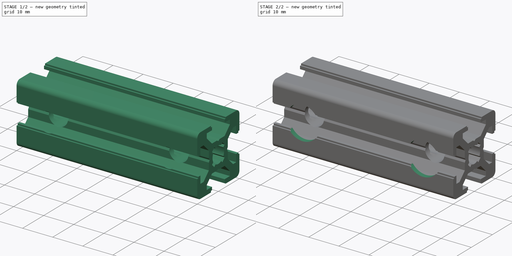
[diagram: build sequence overview — one tinted view per stage of 2, left to right]
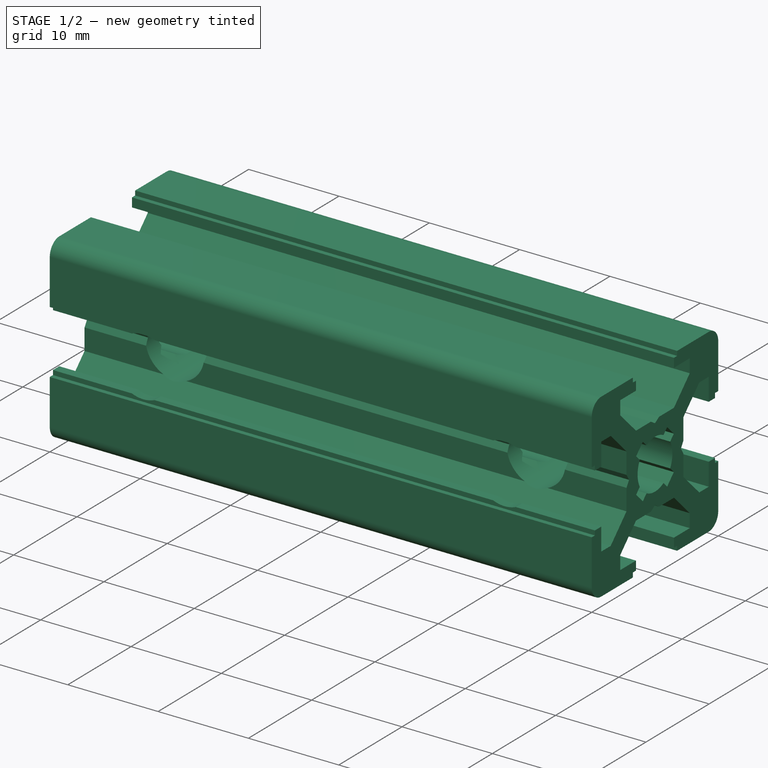
[diagram: stage 1 of 2 — iso view after this stage's code; geometry added in this stage tinted green]
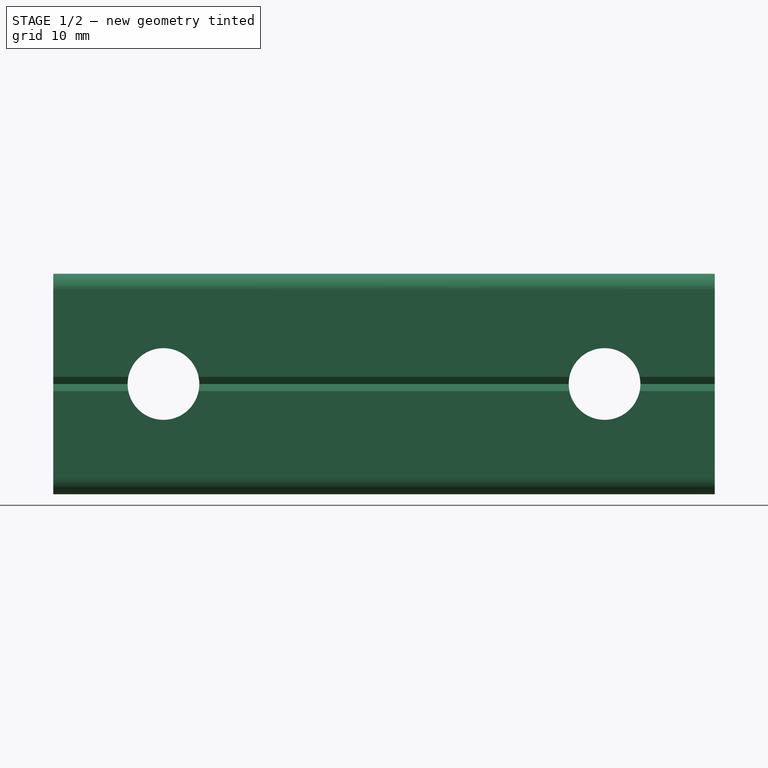
[diagram: stage 1 of 2 — front view after this stage's code; geometry added in this stage tinted green]
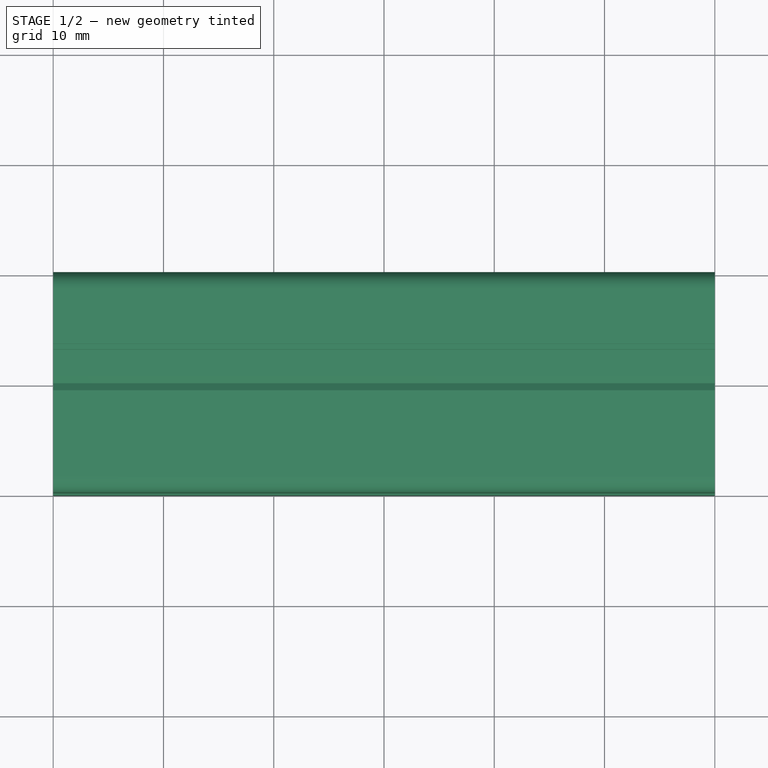
[diagram: stage 1 of 2 — top view after this stage's code; geometry added in this stage tinted green]
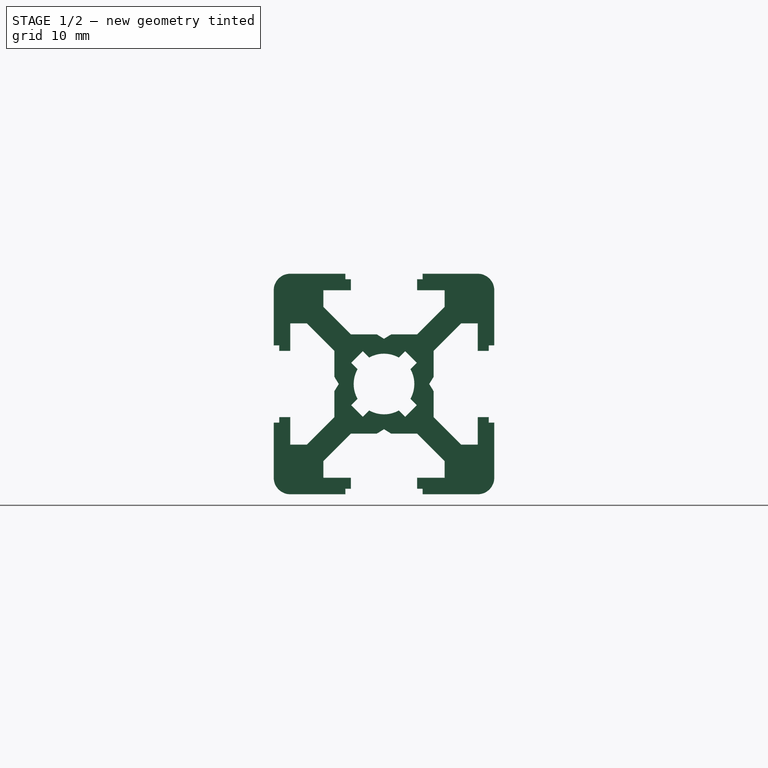
[diagram: stage 1 of 2 — right view after this stage's code; geometry added in this stage tinted green]
FCSTD DOCUMENT  (FreeCAD 0.19R)
Label: Tslot6con
License: All rights reserved
LicenseURL: http://en.wikipedia.org/wiki/All_rights_reserved
objects: Sketcher::SketchObject×3, PartDesign::Pocket×2, PartDesign::Pad×1, PartDesign::Body×1
note: 10 computed .brp shape members not serialized (recipe doc carries the construction recipe); baked Part::Feature solids carry a one-line shape summary decoded from their .brp

FEATURE [Sketcher::SketchObject] Sketch  label="T-Slot-Skizze"
  FullyConstrained = true
  MapMode = 5
  Placement = pos=(0,0,0) rot=(0.57735,0.57735,0.57735;2.0944rad)
  Support = -> [YZ_Plane]
  sketch-geometry (98):
    g0: LineSegment StartX=0 StartY=4.1 StartZ=0 EndX=0.65 EndY=4.5 EndZ=0
    g1: LineSegment StartX=0.65 StartY=4.5 StartZ=0 EndX=3 EndY=4.5 EndZ=0
    g2: LineSegment StartX=3 StartY=4.5 StartZ=0 EndX=5.5 EndY=7 EndZ=0
    g3: LineSegment StartX=5.5 StartY=7 StartZ=0 EndX=5.5 EndY=8.5 EndZ=0
    g4: LineSegment StartX=5.5 StartY=8.5 StartZ=0 EndX=3 EndY=8.5 EndZ=0
    g5: LineSegment StartX=3 StartY=8.5 StartZ=0 EndX=3 EndY=9.5 EndZ=0
    g6: LineSegment StartX=3 StartY=9.5 StartZ=0 EndX=3.5 EndY=9.5 EndZ=0
    g7: LineSegment StartX=3.5 StartY=9.5 StartZ=0 EndX=3.5 EndY=10 EndZ=0
    g8: LineSegment StartX=3.5 StartY=10 StartZ=0 EndX=8.5 EndY=10 EndZ=0
    g9: LineSegment StartX=10 StartY=8.5 StartZ=0 EndX=10 EndY=3.5 EndZ=0
    g10: LineSegment StartX=10 StartY=3.5 StartZ=0 EndX=9.5 EndY=3.5 EndZ=0
    g11: LineSegment StartX=9.5 StartY=3.5 StartZ=0 EndX=9.5 EndY=3 EndZ=0
    g12: LineSegment StartX=9.5 StartY=3 StartZ=0 EndX=8.5 EndY=3 EndZ=0
    g13: LineSegment StartX=8.5 StartY=3 StartZ=0 EndX=8.5 EndY=5.5 EndZ=0
    g14: LineSegment StartX=8.5 StartY=5.5 StartZ=0 EndX=7 EndY=5.5 EndZ=0
    g15: LineSegment StartX=7 StartY=5.5 StartZ=0 EndX=4.5 EndY=3 EndZ=0
    g16: LineSegment StartX=4.5 StartY=3 StartZ=0 EndX=4.5 EndY=0.65 EndZ=0
    g17: LineSegment StartX=4.5 StartY=0.65 StartZ=0 EndX=4.1 EndY=0 EndZ=0
    g18: ArcOfCircle CenterX=8.5 CenterY=8.5 CenterZ=0 NormalX=0 NormalY=0 NormalZ=1 AngleXU=0 Radius=1.5 StartAngle=0 EndAngle=1.5708
    g19: LineSegment StartX=0 StartY=-4.1 StartZ=0 EndX=0.65 EndY=-4.5 EndZ=0
    g20: LineSegment StartX=0.65 StartY=-4.5 StartZ=0 EndX=3 EndY=-4.5 EndZ=0
    g21: LineSegment StartX=3 StartY=-4.5 StartZ=0 EndX=5.5 EndY=-7 EndZ=0
    g22: LineSegment StartX=5.5 StartY=-7 StartZ=0 EndX=5.5 EndY=-8.5 EndZ=0
    g23: LineSegment StartX=5.5 StartY=-8.5 StartZ=0 EndX=3 EndY=-8.5 EndZ=0
    g24: LineSegment StartX=3 StartY=-8.5 StartZ=0 EndX=3 EndY=-9.5 EndZ=0
    g25: LineSegment StartX=3 StartY=-9.5 StartZ=0 EndX=3.5 EndY=-9.5 EndZ=0
    g26: LineSegment StartX=3.5 StartY=-9.5 StartZ=0 EndX=3.5 EndY=-10 EndZ=0
    g27: LineSegment StartX=3.5 StartY=-10 StartZ=0 EndX=8.5 EndY=-10 EndZ=0
    g28: LineSegment StartX=10 StartY=-8.5 StartZ=0 EndX=10 EndY=-3.5 EndZ=0
    g29: LineSegment StartX=10 StartY=-3.5 StartZ=0 EndX=9.5 EndY=-3.5 EndZ=0
    g30: LineSegment StartX=9.5 StartY=-3.5 StartZ=0 EndX=9.5 EndY=-3 EndZ=0
    g31: LineSegment StartX=9.5 StartY=-3 StartZ=0 EndX=8.5 EndY=-3 EndZ=0
    g32: LineSegment StartX=8.5 StartY=-3 StartZ=0 EndX=8.5 EndY=-5.5 EndZ=0
    g33: LineSegment StartX=8.5 StartY=-5.5 StartZ=0 EndX=7 EndY=-5.5 EndZ=0
    g34: LineSegment StartX=7 StartY=-5.5 StartZ=0 EndX=4.5 EndY=-3 EndZ=0
    g35: LineSegment StartX=4.5 StartY=-3 StartZ=0 EndX=4.5 EndY=-0.65 EndZ=0
    g36: ArcOfCircle CenterX=8.5 CenterY=-8.5 CenterZ=0 NormalX=0 NormalY=0 NormalZ=1 AngleXU=0 Radius=1.5 StartAngle=4.71239 EndAngle=6.28319
    g37: LineSegment StartX=4.5 StartY=-0.65 StartZ=0 EndX=4.1 EndY=0 EndZ=0
    g38: LineSegment StartX=0 StartY=-4.1 StartZ=0 EndX=-0.65 EndY=-4.5 EndZ=0
    g39: LineSegment StartX=-0.65 StartY=-4.5 StartZ=0 EndX=-3 EndY=-4.5 EndZ=0
    g40: LineSegment StartX=-3 StartY=-4.5 StartZ=0 EndX=-5.5 EndY=-7 EndZ=0
    g41: LineSegment StartX=-5.5 StartY=-7 StartZ=0 EndX=-5.5 EndY=-8.5 EndZ=0
    g42: LineSegment StartX=-5.5 StartY=-8.5 StartZ=0 EndX=-3 EndY=-8.5 EndZ=0
    g43: LineSegment StartX=-3 StartY=-8.5 StartZ=0 EndX=-3 EndY=-9.5 EndZ=0
    g44: LineSegment StartX=-3 StartY=-9.5 StartZ=0 EndX=-3.5 EndY=-9.5 EndZ=0
    g45: LineSegment StartX=-3.5 StartY=-9.5 StartZ=0 EndX=-3.5 EndY=-10 EndZ=0
    g46: LineSegment StartX=-3.5 StartY=-10 StartZ=0 EndX=-8.5 EndY=-10 EndZ=0
    g47: LineSegment StartX=-10 StartY=-8.5 StartZ=0 EndX=-10 EndY=-3.5 EndZ=0
    g48: LineSegment StartX=-10 StartY=-3.5 StartZ=0 EndX=-9.5 EndY=-3.5 EndZ=0
    g49: LineSegment StartX=-9.5 StartY=-3.5 StartZ=0 EndX=-9.5 EndY=-3 EndZ=0
    g50: LineSegment StartX=-9.5 StartY=-3 StartZ=0 EndX=-8.5 EndY=-3 EndZ=0
    g51: LineSegment StartX=-8.5 StartY=-3 StartZ=0 EndX=-8.5 EndY=-5.5 EndZ=0
    g52: LineSegment StartX=-8.5 StartY=-5.5 StartZ=0 EndX=-7 EndY=-5.5 EndZ=0
    g53: LineSegment StartX=-7 StartY=-5.5 StartZ=0 EndX=-4.5 EndY=-3 EndZ=0
    g54: LineSegment StartX=-4.5 StartY=-3 StartZ=0 EndX=-4.5 EndY=-0.65 EndZ=0
    g55: ArcOfCircle CenterX=-8.5 CenterY=-8.5 CenterZ=0 NormalX=0 NormalY=0 NormalZ=1 AngleXU=0 Radius=1.5 StartAngle=3.14159 EndAngle=4.71239
    g56: LineSegment StartX=-4.5 StartY=-0.65 StartZ=0 EndX=-4.1 EndY=0 EndZ=0
    g57: LineSegment StartX=-0.65 StartY=4.5 StartZ=0 EndX=-3 EndY=4.5 EndZ=0
    g58: LineSegment StartX=-3 StartY=4.5 StartZ=0 EndX=-5.5 EndY=7 EndZ=0
    g59: LineSegment StartX=-5.5 StartY=7 StartZ=0 EndX=-5.5 EndY=8.5 EndZ=0
    g60: LineSegment StartX=-5.5 StartY=8.5 StartZ=0 EndX=-3 EndY=8.5 EndZ=0
    g61: LineSegment StartX=-3 StartY=8.5 StartZ=0 EndX=-3 EndY=9.5 EndZ=0
    g62: LineSegment StartX=-3 StartY=9.5 StartZ=0 EndX=-3.5 EndY=9.5 EndZ=0
    g63: LineSegment StartX=-3.5 StartY=9.5 StartZ=0 EndX=-3.5 EndY=10 EndZ=0
    g64: LineSegment StartX=-3.5 StartY=10 StartZ=0 EndX=-8.5 EndY=10 EndZ=0
    g65: LineSegment StartX=-10 StartY=8.5 StartZ=0 EndX=-10 EndY=3.5 EndZ=0
    g66: LineSegment StartX=-10 StartY=3.5 StartZ=0 EndX=-9.5 EndY=3.5 EndZ=0
    g67: LineSegment StartX=-9.5 StartY=3.5 StartZ=0 EndX=-9.5 EndY=3 EndZ=0
    g68: LineSegment StartX=-9.5 StartY=3 StartZ=0 EndX=-8.5 EndY=3 EndZ=0
    g69: LineSegment StartX=-8.5 StartY=3 StartZ=0 EndX=-8.5 EndY=5.5 EndZ=0
    g70: LineSegment StartX=-8.5 StartY=5.5 StartZ=0 EndX=-7 EndY=5.5 EndZ=0
    g71: LineSegment StartX=-7 StartY=5.5 StartZ=0 EndX=-4.5 EndY=3 EndZ=0
    g72: LineSegment StartX=-4.5 StartY=3 StartZ=0 EndX=-4.5 EndY=0.65 EndZ=0
    g73: ArcOfCircle CenterX=-8.5 CenterY=8.5 CenterZ=0 NormalX=0 NormalY=0 NormalZ=1 AngleXU=0 Radius=1.5 StartAngle=1.5708 EndAngle=3.14159
    g74: LineSegment StartX=-4.5 StartY=0.65 StartZ=0 EndX=-4.1 EndY=0 EndZ=0
    g75: LineSegment StartX=0 StartY=4.1 StartZ=0 EndX=-0.65 EndY=4.5 EndZ=0
    g76: Circle CenterX=0 CenterY=0 CenterZ=0 NormalX=0 NormalY=0 NormalZ=1 AngleXU=0 Radius=3.55
    g77: Circle CenterX=0 CenterY=0 CenterZ=0 NormalX=0 NormalY=0 NormalZ=1 AngleXU=0 Radius=2.75
    g78: LineSegment StartX=1.3405 StartY=2.40116 StartZ=0 EndX=1.92324 EndY=2.9839 EndZ=0
    g79: LineSegment StartX=1.92324 StartY=2.9839 StartZ=0 EndX=2.9839 EndY=1.92324 EndZ=0
    g80: LineSegment StartX=2.9839 StartY=1.92324 StartZ=0 EndX=2.40116 EndY=1.3405 EndZ=0
    g81: ArcOfCircle CenterX=0 CenterY=0 CenterZ=0 NormalX=0 NormalY=0 NormalZ=1 AngleXU=0 Radius=2.75 StartAngle=0 EndAngle=0.509172
    g82: ArcOfCircle CenterX=0 CenterY=0 CenterZ=0 NormalX=0 NormalY=0 NormalZ=1 AngleXU=0 Radius=2.75 StartAngle=1.06162 EndAngle=1.5708
    g83: LineSegment StartX=-1.3405 StartY=2.40116 StartZ=0 EndX=-1.92324 EndY=2.9839 EndZ=0
    g84: LineSegment StartX=-1.92324 StartY=2.9839 StartZ=0 EndX=-2.9839 EndY=1.92324 EndZ=0
    g85: LineSegment StartX=-2.9839 StartY=1.92324 StartZ=0 EndX=-2.40116 EndY=1.3405 EndZ=0
    g86: ArcOfCircle CenterX=-1.3e-15 CenterY=6e-16 CenterZ=0 NormalX=0 NormalY=0 NormalZ=1 AngleXU=0 Radius=2.75 StartAngle=2.63242 EndAngle=3.14159
    g87: ArcOfCircle CenterX=-1.3e-15 CenterY=6e-16 CenterZ=0 NormalX=0 NormalY=0 NormalZ=1 AngleXU=0 Radius=2.75 StartAngle=1.5708 EndAngle=2.07997
    g88: LineSegment StartX=-1.34051 StartY=-2.40115 StartZ=0 EndX=-1.92325 EndY=-2.98389 EndZ=0
    g89: LineSegment StartX=-1.92325 StartY=-2.98389 StartZ=0 EndX=-2.9839 EndY=-1.92323 EndZ=0
    g90: LineSegment StartX=-2.9839 StartY=-1.92323 StartZ=0 EndX=-2.40116 EndY=-1.34049 EndZ=0
    g91: ArcOfCircle CenterX=-3e-16 CenterY=2e-16 CenterZ=0 NormalX=0 NormalY=0 NormalZ=1 AngleXU=0 Radius=2.75 StartAngle=3.14159 EndAngle=3.65076
    g92: ArcOfCircle CenterX=-3e-16 CenterY=2e-16 CenterZ=0 NormalX=0 NormalY=0 NormalZ=1 AngleXU=0 Radius=2.75 StartAngle=4.20321 EndAngle=4.71239
    g93: LineSegment StartX=1.34051 StartY=-2.40115 StartZ=0 EndX=1.92325 EndY=-2.98389 EndZ=0
    g94: LineSegment StartX=1.92325 StartY=-2.98389 StartZ=0 EndX=2.9839 EndY=-1.92323 EndZ=0
    g95: LineSegment StartX=2.9839 StartY=-1.92323 StartZ=0 EndX=2.40116 EndY=-1.34049 EndZ=0
    g96: ArcOfCircle CenterX=3e-16 CenterY=2e-16 CenterZ=0 NormalX=0 NormalY=0 NormalZ=1 AngleXU=0 Radius=2.75 StartAngle=4.71239 EndAngle=5.22156
    g97: ArcOfCircle CenterX=3e-16 CenterY=2e-16 CenterZ=0 NormalX=0 NormalY=0 NormalZ=1 AngleXU=0 Radius=2.75 StartAngle=5.77402 EndAngle=6.28319
  constraints (291):
    c: PointOnObject(g0,g-2)
    c: Coincident(g0,g1)
    c: Horizontal(g1)
    c: Coincident(g1,g2)
    c: Coincident(g2,g3)
    c: Vertical(g3)
    c: Coincident(g3,g4)
    c: Horizontal(g4)
    c: Coincident(g4,g5)
    c: Vertical(g5)
    c: Coincident(g5,g6)
    c: Horizontal(g6)
    c: Coincident(g6,g7)
    c: Coincident(g7,g8)
    c: Horizontal(g8)
    c: Vertical(g7)
    c: DistanceX(g-1,g5) = 3
    c: DistanceY(g4,g7) = 1.5
    c: DistanceY(g0,g7) = 5.5
    c: DistanceY(g3,g3) = 1.5
    c: DistanceY(g4,g5) = 1
    c: DistanceX(g-1,g1) = 3
    c: DistanceX(g-1,g7) = 3.5
    c: DistanceX(g0,g0) = 0.65
    c: DistanceY(g0,g0) = 0.4
    c: DistanceX(g-1,g3) = 5.5
    c: Vertical(g9)
    c: Coincident(g9,g10)
    c: Coincident(g10,g11)
    c: Coincident(g11,g12)
    c: Coincident(g12,g13)
    c: Vertical(g13)
    c: Coincident(g13,g14)
    c: Horizontal(g14)
    c: Coincident(g14,g15)
    c: Coincident(g15,g16)
    c: Vertical(g16)
    c: Coincident(g16,g17)
    c: PointOnObject(g17,g-1)
    c: Horizontal(g10)
    c: Horizontal(g12)
    c: Vertical(g11)
    c: Equal(g17,g0)
    c: Equal(g1,g16)
    c: Equal(g15,g2)
    c: Equal(g3,g14)
    c: Equal(g13,g4)
    c: Equal(g12,g5)
    c: Parallel(g15,g2)
    c: Equal(g11,g6)
    c: Equal(g10,g7)
    c: Equal(g9,g8)
    c: Tangent(g8,g18) = 1.5708
    c: Tangent(g9,g18) = 1.5708
    c: Radius(g18) = 1.5
    c: DistanceY(g-1,g8) = 10
    c: DistanceX(g-1,g9) = 10
    c: Coincident(g19,g20)
    c: Horizontal(g20)
    c: Coincident(g20,g21)
    c: Coincident(g21,g22)
    c: Vertical(g22)
    c: Coincident(g22,g23)
    c: Horizontal(g23)
    c: Coincident(g23,g24)
    c: Vertical(g24)
    c: Coincident(g24,g25)
    c: Horizontal(g25)
    c: Coincident(g25,g26)
    c: Coincident(g26,g27)
    c: Horizontal(g27)
    c: Vertical(g26)
    c: Vertical(g28)
    c: Coincident(g28,g29)
    c: Coincident(g29,g30)
    c: Coincident(g30,g31)
    c: Coincident(g31,g32)
    c: Vertical(g32)
    c: Coincident(g32,g33)
    c: Horizontal(g33)
    c: Coincident(g33,g34)
    c: Coincident(g34,g35)
    c: Vertical(g35)
    c: Coincident(g35,g37)
    c: Horizontal(g29)
    c: Horizontal(g31)
    c: Vertical(g30)
    c: Equal(g37,g19)
    c: Equal(g20,g35)
    c: Equal(g34,g21)
    c: Equal(g22,g33)
    c: Equal(g32,g23)
    c: Equal(g31,g24)
    c: Parallel(g34,g21)
    c: Equal(g30,g25)
    c: Equal(g29,g26)
    c: Equal(g28,g27)
    c: Tangent(g27,g36) = -1.5708
    c: Tangent(g28,g36) = -1.5708
    c: Radius(g36) = 1.5
    c: Equal(g9,g28)
    c: Equal(g12,g31)
    c: DistanceX(g-1,g28) = 10
    c: DistanceY(g27,g-1) = 10
    c: DistanceY(g30,g-1) = 3
    c: Equal(g33,g14)
    c: Equal(g35,g16)
    c: Equal(g17,g37)
    c: Coincident(g37,g17)
    c: Equal(g15,g34)
    c: PointOnObject(g19,g-2)
    c: DistanceY(g34,g-1) = 3
    c: DistanceX(g-1,g20) = 3
    c: Coincident(g38,g39)
    c: Horizontal(g39)
    c: Coincident(g39,g40)
    c: Coincident(g40,g41)
    c: Vertical(g41)
    c: Coincident(g41,g42)
    c: Horizontal(g42)
    c: Coincident(g42,g43)
    c: Vertical(g43)
    c: Coincident(g43,g44)
    c: Horizontal(g44)
    c: Coincident(g44,g45)
    c: Coincident(g45,g46)
    c: Horizontal(g46)
    c: Vertical(g45)
    c: Vertical(g47)
    c: Coincident(g47,g48)
    c: Coincident(g48,g49)
    c: Coincident(g49,g50)
    c: Coincident(g50,g51)
    c: Vertical(g51)
    c: Coincident(g51,g52)
    c: Horizontal(g52)
    c: Coincident(g52,g53)
    c: Coincident(g53,g54)
    c: Vertical(g54)
    c: Coincident(g54,g56)
    c: Horizontal(g48)
    c: Horizontal(g50)
    c: Vertical(g49)
    c: Equal(g39,g54)
    c: Equal(g53,g40)
    c: Equal(g41,g52)
    c: Equal(g51,g42)
    c: Equal(g50,g43)
    c: Parallel(g53,g40)
    c: Equal(g49,g44)
    c: Equal(g48,g45)
    c: Equal(g47,g46)
    c: Tangent(g46,g55) = 1.5708
    c: Tangent(g47,g55) = 1.5708
    c: Radius(g55) = 1.5
    c: Coincident(g38,g19)
    c: DistanceX(g39,g-1) = 3
    c: DistanceX(g38,g19) = 0.65
    c: DistanceY(g38,g19) = 0.4
    c: PointOnObject(g56,g-1)
    c: Equal(g56,g38)
    c: DistanceY(g53,g-1) = 3
    c: Equal(g22,g41)
    c: Equal(g42,g23)
    c: Equal(g24,g43)
    c: Equal(g25,g44)
    c: Equal(g26,g45)
    c: DistanceY(g46,g-1) = 10
    c: DistanceX(g47,g-1) = 10
    c: Coincident(g75,g57)
    c: Horizontal(g57)
    c: Coincident(g57,g58)
    c: Coincident(g58,g59)
    c: Vertical(g59)
    c: Coincident(g59,g60)
    c: Horizontal(g60)
    c: Coincident(g60,g61)
    c: Vertical(g61)
    c: Coincident(g61,g62)
    c: Horizontal(g62)
    c: Coincident(g62,g63)
    c: Coincident(g63,g64)
    c: Horizontal(g64)
    c: Vertical(g63)
    c: Vertical(g65)
    c: Coincident(g65,g66)
    c: Coincident(g66,g67)
    c: Coincident(g67,g68)
    c: Coincident(g68,g69)
    c: Vertical(g69)
    c: Coincident(g69,g70)
    c: Horizontal(g70)
    c: Coincident(g70,g71)
    c: Coincident(g71,g72)
    c: Vertical(g72)
    c: Coincident(g72,g74)
    c: Horizontal(g66)
    c: Horizontal(g68)
    c: Vertical(g67)
    c: Equal(g57,g72)
    c: Equal(g71,g58)
    c: Equal(g59,g70)
    c: Equal(g69,g60)
    c: Equal(g68,g61)
    c: Parallel(g71,g58)
    c: Equal(g67,g62)
    c: Equal(g66,g63)
    c: Equal(g65,g64)
    c: Tangent(g64,g73) = -1.5708
    c: Tangent(g65,g73) = -1.5708
    c: Radius(g73) = 1.5
    c: Equal(g74,g75)
    c: Coincident(g56,g74)
    c: Coincident(g0,g75)
    c: Equal(g0,g75)
    c: Equal(g1,g57)
    c: Equal(g2,g58)
    c: Equal(g3,g59)
    c: Equal(g4,g60)
    c: Equal(g5,g61)
    c: Equal(g6,g62)
    c: Equal(g7,g63)
    c: Equal(g8,g64)
    c: DistanceX(g65,g-1) = 10
    c: Coincident(g76,g-1)
    c: Coincident(g77,g-1)
    c: Radius(g76) = 3.55
    c: Radius(g77) = 2.75
    c: PointOnObject(g78,g77)
    c: PointOnObject(g78,g76)
    c: Coincident(g78,g79)
    c: PointOnObject(g79,g76)
    c: Coincident(g79,g80)
    c: PointOnObject(g80,g77)
    c: Coincident(g81,g-1)
    c: Coincident(g81,g80)
    c: Coincident(g82,g81)
    c: Coincident(g82,g78)
    c: Parallel(g78,g80)
    c: Parallel(g78,g2)
    c: Distance(g79) = 1.5
    c: Distance(g78,g80) = 1.5
    c: PointOnObject(g82,g-2)
    c: PointOnObject(g81,g-1)
    c: Coincident(g83,g84)
    c: Coincident(g84,g85)
    c: Coincident(g86,g85)
    c: Coincident(g87,g86)
    c: Coincident(g87,g83)
    c: Parallel(g83,g85)
    c: Distance(g84) = 1.5
    c: Distance(g83,g85) = 1.5
    c: Coincident(g82,g87)
    c: PointOnObject(g86,g-1)
    c: PointOnObject(g83,g76)
    c: PointOnObject(g83,g77)
    c: PointOnObject(g85,g77)
    c: PointOnObject(g84,g76)
    c: PointOnObject(g86,g77)
    c: Parallel(g85,g71)
    c: Coincident(g88,g89)
    c: Coincident(g89,g90)
    c: Coincident(g91,g90)
    c: Coincident(g92,g91)
    c: Coincident(g92,g88)
    c: Parallel(g88,g90)
    c: Distance(g89) = 1.5
    c: Distance(g88,g90) = 1.5
    c: PointOnObject(g88,g77)
    c: PointOnObject(g90,g77)
    c: Coincident(g86,g91)
    c: PointOnObject(g89,g76)
    c: PointOnObject(g88,g76)
    c: PointOnObject(g92,g-2)
    c: PointOnObject(g92,g77)
    c: Parallel(g88,g40)
    c: Coincident(g93,g94)
    c: Coincident(g94,g95)
    c: Coincident(g97,g95)
    c: Coincident(g96,g97)
    c: Coincident(g96,g93)
    c: Parallel(g93,g95)
    c: Distance(g94) = 1.5
    c: Distance(g93,g95) = 1.5
    c: Coincident(g81,g97)
    c: Coincident(g92,g96)
    c: PointOnObject(g93,g77)
    c: PointOnObject(g95,g77)
    c: PointOnObject(g94,g76)
    c: PointOnObject(g93,g76)
    c: Parallel(g93,g21)
FEATURE [PartDesign::Pad] Pad  label="T-Slot-Element"
  Direction = (1,1,1)
  Length = 60
  Length2 = 100
  Placement = pos=(0,0,0) rot=(0.57735,0.57735,0.57735;2.0944rad)
  Profile = -> Sketch
  Type = 0
FEATURE [Sketcher::SketchObject] Sketch001  label="Skizze M6,5"
  AttachmentOffset = pos=(0,0,10) rot=(0,0,1;0rad)
  FullyConstrained = true
  MapMode = 5
  Placement = pos=(0,-10,-2.2e-15) rot=(1,0,0;1.5708rad)
  Support = -> [XZ_Plane]
  sketch-geometry (3):
    g0: LineSegment StartX=0 StartY=0 StartZ=0 EndX=60 EndY=0 EndZ=0
    g1: Circle CenterX=10 CenterY=0 CenterZ=0 NormalX=0 NormalY=0 NormalZ=1 AngleXU=0 Radius=3.25
    g2: Circle CenterX=50 CenterY=0 CenterZ=0 NormalX=0 NormalY=0 NormalZ=1 AngleXU=0 Radius=3.25
  constraints (9):
    c: Horizontal(g0)
    c: DistanceX(g0,g0) = 60  'Tslot-Länge'
    c: PointOnObject(g1,g0)
    c: PointOnObject(g2,g0)
    c: DistanceX(g2,g0) = 10
    c: DistanceX(g0,g1) = 10
    c: Radius(g1) = 3.25
    c: Equal(g1,g2)
    c: Coincident(g0,g-1)
FEATURE [PartDesign::Pocket] Pocket  label="Bohrung M6,5"
  BaseFeature = -> Pad
  Length = 21
  Length2 = 100
  Placement = pos=(0,0,0) rot=(0.57735,0.57735,0.57735;2.0944rad)
  Profile = -> Sketch001
  Type = 0
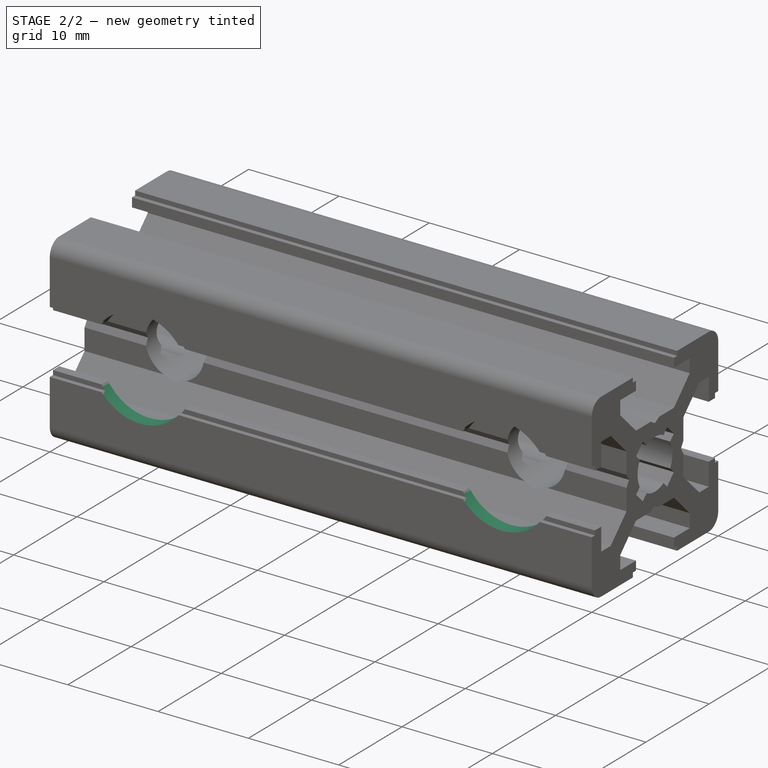
[diagram: stage 2 of 2 — iso view after this stage's code; geometry added in this stage tinted green]
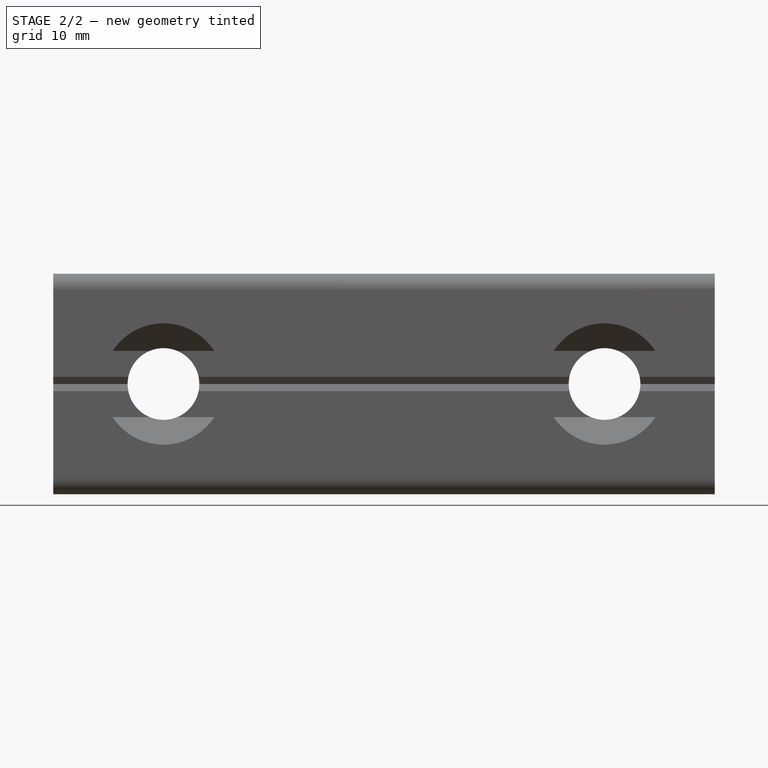
[diagram: stage 2 of 2 — front view after this stage's code; geometry added in this stage tinted green]
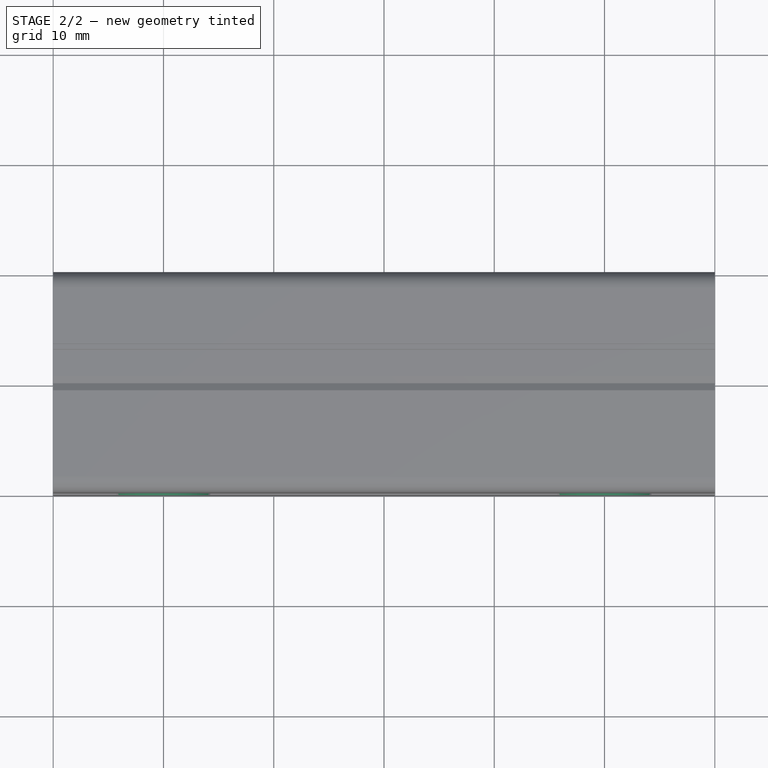
[diagram: stage 2 of 2 — top view after this stage's code; geometry added in this stage tinted green]
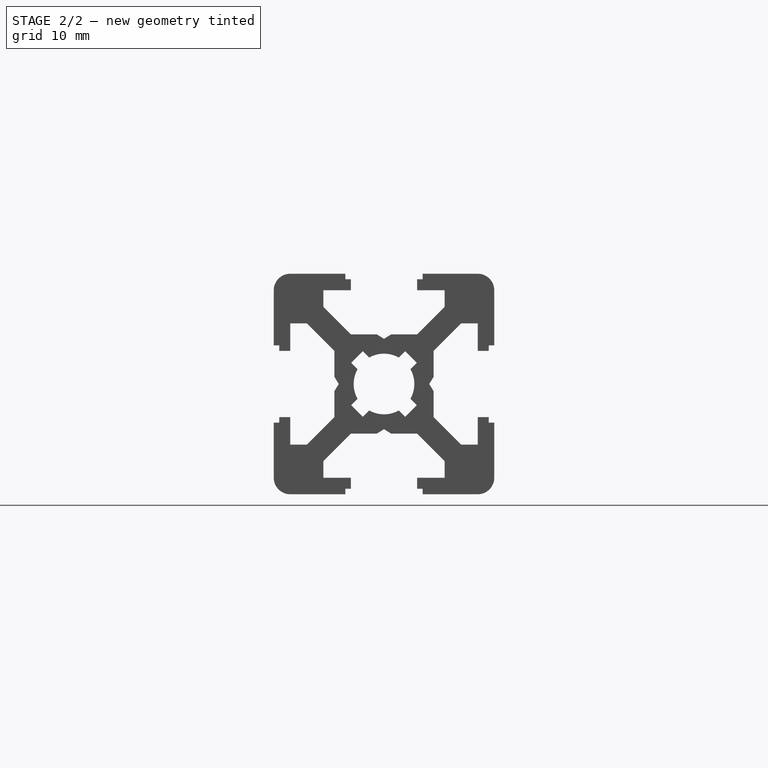
[diagram: stage 2 of 2 — right view after this stage's code; geometry added in this stage tinted green]
FEATURE [Sketcher::SketchObject] Sketch002  label="Skizze 11mm Durchmesser Senkloch"
  AttachmentOffset = pos=(0,0,10) rot=(0,0,1;0rad)
  FullyConstrained = true
  MapMode = 5
  Placement = pos=(0,-10,-2.2e-15) rot=(1,0,0;1.5708rad)
  Support = -> [XZ_Plane]
  sketch-geometry (3):
    g0: LineSegment StartX=0 StartY=0 StartZ=0 EndX=60 EndY=0 EndZ=0
    g1: Circle CenterX=10 CenterY=0 CenterZ=0 NormalX=0 NormalY=0 NormalZ=1 AngleXU=0 Radius=5.5
    g2: Circle CenterX=50 CenterY=0 CenterZ=0 NormalX=0 NormalY=0 NormalZ=1 AngleXU=0 Radius=5.5
  constraints (9):
    c: Horizontal(g0)
    c: DistanceX(g0,g0) = 60
    c: PointOnObject(g1,g0)
    c: PointOnObject(g2,g0)
    c: Equal(g1,g2)
    c: Radius(g1) = 5.5
    c: DistanceX(g0,g1) = 10
    c: DistanceX(g2,g0) = 10
    c: Coincident(g0,g-1)
FEATURE [PartDesign::Pocket] Pocket001  label="Senkloch 11mm Durchmesser"
  BaseFeature = -> Pocket
  Length = 2
  Length2 = 100
  Placement = pos=(0,0,0) rot=(0.57735,0.57735,0.57735;2.0944rad)
  Profile = -> Sketch002
  Type = 0
FEATURE [PartDesign::Body] Body  label="T-Slot-Profil 20x20"
  Group = -> [Sketch,Pad,Sketch001,Pocket,Sketch002,Pocket001]
  Origin = -> Origin
  Tip = -> Pocket001
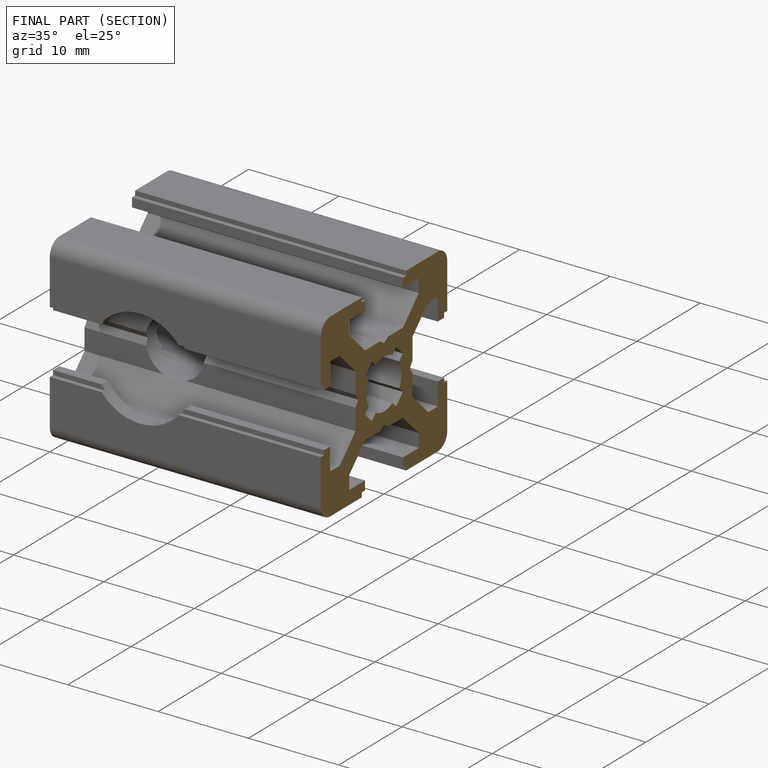
[diagram: finished part — half-section view (interior)]
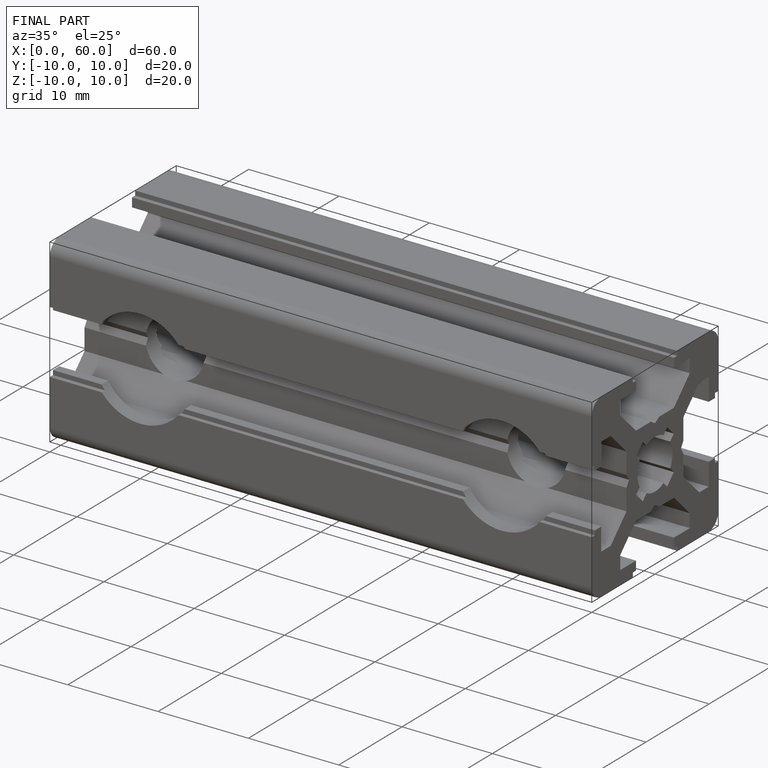
[diagram: finished part — iso view with bounding-box wireframe]
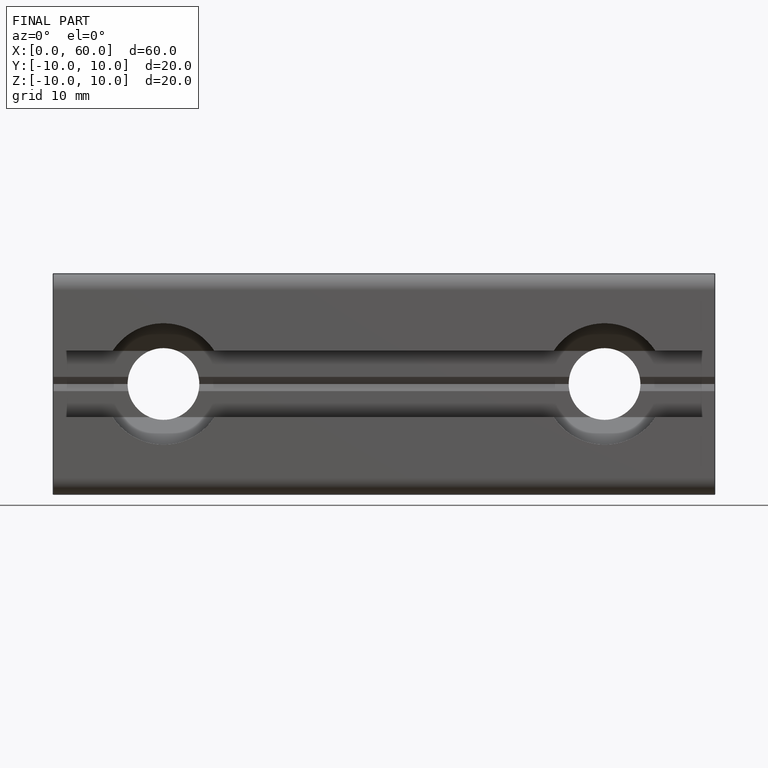
[diagram: finished part — front view with bounding-box wireframe]
